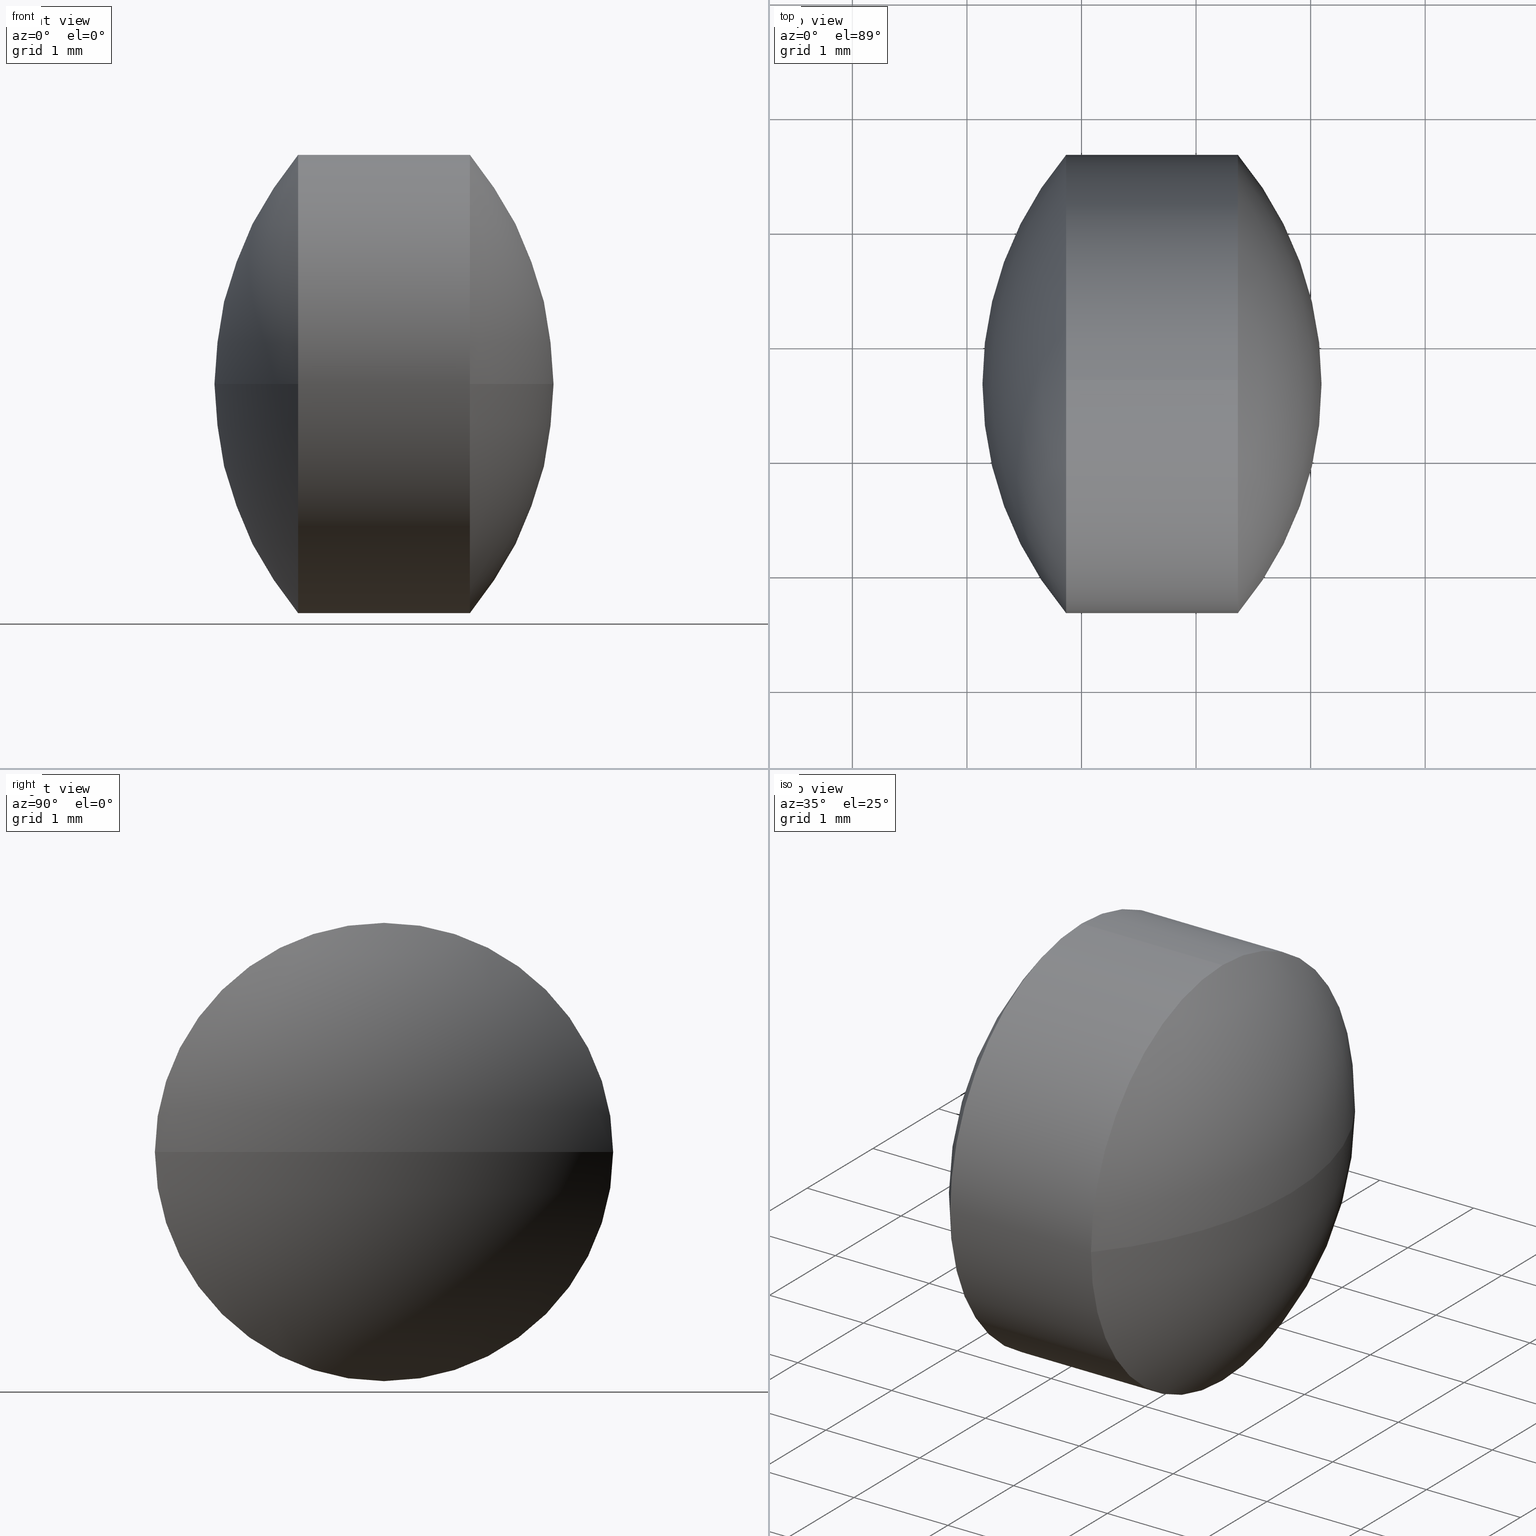
[diagram: canonical four-view strip — front | top / right | iso, engineering-drawing reading convention]
A machine part, canonical four-view strip (front | top / right | iso — engineering-drawing reading convention). The complete STEP part file that produces these views, byte-faithful:
ISO-10303-21;
HEADER;
FILE_DESCRIPTION (( 'STEP AP203' ),
    '1' );
FILE_NAME ('110088.STEP',
    '2019-07-01T07:40:46',
    ( '' ),
    ( '' ),
    'SwSTEP 2.0',
    'SolidWorks 2016',
    '' );
FILE_SCHEMA (( 'CONFIG_CONTROL_DESIGN' ));
ENDSEC;

DATA;
#1 = COORDINATED_UNIVERSAL_TIME_OFFSET ( 8, 0, .AHEAD. ) ;
#2 = AXIS2_PLACEMENT_3D ( 'NONE', #171, #3, #334 ) ;
#3 = DIRECTION ( 'NONE',  ( -0.0000000000000000000, 0.0000000000000000000, -1.000000000000000000 ) ) ;
#4 = ORIENTED_EDGE ( 'NONE', *, *, #158, .F. ) ;
#5 = DIRECTION ( 'NONE',  ( -1.000000000000000000, -0.0000000000000000000, -0.0000000000000000000 ) ) ;
#6 = APPLICATION_CONTEXT ( 'configuration controlled 3d designs of mechanical parts and assemblies' ) ;
#7 = CARTESIAN_POINT ( 'NONE',  ( 12.86546358656102900, 7.656080791052722200, 0.0000000000000000000 ) ) ;
#8 = DIRECTION ( 'NONE',  ( 0.0000000000000000000, 0.0000000000000000000, 1.000000000000000000 ) ) ;
#9 = APPROVAL_STATUS ( 'not_yet_approved' ) ;
#10 = LINE ( 'NONE', #114, #75 ) ;
#11 = CC_DESIGN_PERSON_AND_ORGANIZATION_ASSIGNMENT ( #21, #97, ( #301 ) ) ;
#12 = APPROVAL_ROLE ( '' ) ;
#13 = APPLICATION_PROTOCOL_DEFINITION ( 'international standard', 'config_control_design', 1994, #119 ) ;
#14 = APPROVAL ( #331, 'δָ��' ) ;
#15 = LOCAL_TIME ( 15, 40, 46.00000000000000000, #199 ) ;
#16 = DIRECTION ( 'NONE',  ( 0.0000000000000000000, 0.0000000000000000000, 1.000000000000000000 ) ) ;
#17 = EDGE_LOOP ( 'NONE', ( #216, #235, #241, #33 ) ) ;
#18 = EDGE_CURVE ( 'NONE', #317, #156, #59, .T. ) ;
#19 = COORDINATED_UNIVERSAL_TIME_OFFSET ( 8, 0, .AHEAD. ) ;
#20 = EDGE_LOOP ( 'NONE', ( #157, #36, #107, #50, #4, #320 ) ) ;
#21 = PERSON_AND_ORGANIZATION ( #101, #93 ) ;
#22 = CC_DESIGN_PERSON_AND_ORGANIZATION_ASSIGNMENT ( #240, #41, ( #239 ) ) ;
#23 = DATE_AND_TIME ( #260, #328 ) ;
#24 = ORIENTED_EDGE ( 'NONE', *, *, #234, .F. ) ;
#25 = CARTESIAN_POINT ( 'NONE',  ( 15.24018961395828400, 7.656080791052722200, 0.0000000000000000000 ) ) ;
#26 = DIRECTION ( 'NONE',  ( 0.0000000000000000000, 0.0000000000000000000, 1.000000000000000000 ) ) ;
#27 = AXIS2_PLACEMENT_3D ( 'NONE', #180, #45, #207 ) ;
#28 = LOCAL_TIME ( 15, 40, 46.00000000000000000, #142 ) ;
#29 = CARTESIAN_POINT ( 'NONE',  ( 14.36546358656102900, 7.656080791052722200, 0.0000000000000000000 ) ) ;
#30 = PERSON_AND_ORGANIZATION_ROLE ( 'design_supplier' ) ;
#31 = PERSON_AND_ORGANIZATION ( #101, #93 ) ;
#32 = CC_DESIGN_APPROVAL ( #270, ( #113 ) ) ;
#33 = ORIENTED_EDGE ( 'NONE', *, *, #79, .F. ) ;
#34 = CARTESIAN_POINT ( 'NONE',  ( 11.99073755916374400, 7.656080791052730200, 0.0000000000000000000 ) ) ;
#35 = ORIENTED_EDGE ( 'NONE', *, *, #248, .F. ) ;
#36 = ORIENTED_EDGE ( 'NONE', *, *, #213, .T. ) ;
#37 = MECHANICAL_CONTEXT ( 'NONE', #329, 'mechanical' ) ;
#38 = CARTESIAN_POINT ( 'NONE',  ( 14.36546358656102900, 7.656080791052722200, 0.0000000000000000000 ) ) ;
#39 = PERSON_AND_ORGANIZATION_ROLE ( 'creator' ) ;
#40 =( NAMED_UNIT ( * ) SI_UNIT ( $, .STERADIAN. ) SOLID_ANGLE_UNIT ( ) );
#41 = PERSON_AND_ORGANIZATION_ROLE ( 'classification_officer' ) ;
#42 = CARTESIAN_POINT ( 'NONE',  ( 0.0000000000000000000, 0.0000000000000000000, 0.0000000000000000000 ) ) ;
#43 = APPROVAL_PERSON_ORGANIZATION ( #273, #163, #230 ) ;
#44 = ORIENTED_EDGE ( 'NONE', *, *, #95, .F. ) ;
#45 = DIRECTION ( 'NONE',  ( -1.000000000000000000, -0.0000000000000000000, -0.0000000000000000000 ) ) ;
#46 =( LENGTH_UNIT ( ) NAMED_UNIT ( * ) SI_UNIT ( .MILLI., .METRE. ) );
#47 = CC_DESIGN_APPROVAL ( #163, ( #239 ) ) ;
#48 = CALENDAR_DATE ( 2019, 1, 7 ) ;
#49 = VERTEX_POINT ( 'NONE', #58 ) ;
#50 = ORIENTED_EDGE ( 'NONE', *, *, #297, .F. ) ;
#51 = FACE_OUTER_BOUND ( 'NONE', #84, .T. ) ;
#52 = SECURITY_CLASSIFICATION ( '', '', #284 ) ;
#53 = ADVANCED_FACE ( 'NONE', ( #282 ), #321, .T. ) ;
#54 = PERSON_AND_ORGANIZATION ( #101, #93 ) ;
#55 = PRODUCT_RELATED_PRODUCT_CATEGORY ( 'detail', '', ( #159 ) ) ;
#56 = COORDINATED_UNIVERSAL_TIME_OFFSET ( 8, 0, .AHEAD. ) ;
#57 = PRODUCT_DEFINITION ( 'δ֪', '', #301, #243 ) ;
#58 = CARTESIAN_POINT ( 'NONE',  ( 15.09546358656102200, 7.656080791052730200, 0.0000000000000000000 ) ) ;
#59 = CIRCLE ( 'NONE', #105, 1.999999999999998200 ) ;
#60 = CARTESIAN_POINT ( 'NONE',  ( 12.86546358656102900, 7.656080791052722200, 0.0000000000000000000 ) ) ;
#61 = PRODUCT_DEFINITION ( 'δ֪', '', #113, #281 ) ;
#62 = CARTESIAN_POINT ( 'NONE',  ( 11.99073755916374400, 7.656080791052730200, 0.0000000000000000000 ) ) ;
#63 = CALENDAR_DATE ( 2019, 1, 7 ) ;
#64 = ORIENTED_EDGE ( 'NONE', *, *, #108, .T. ) ;
#65 = DIRECTION ( 'NONE',  ( -1.000000000000000000, -0.0000000000000000000, -0.0000000000000000000 ) ) ;
#66 = CC_DESIGN_PERSON_AND_ORGANIZATION_ASSIGNMENT ( #70, #39, ( #301 ) ) ;
#67 = PRODUCT_DEFINITION_SHAPE ( 'NONE', 'NONE',  #61 ) ;
#68 = AXIS2_PLACEMENT_3D ( 'NONE', #34, #148, #225 ) ;
#69 = DIRECTION ( 'NONE',  ( 1.000000000000000000, 0.0000000000000000000, 0.0000000000000000000 ) ) ;
#70 = PERSON_AND_ORGANIZATION ( #101, #93 ) ;
#71 = EDGE_LOOP ( 'NONE', ( #296, #305, #149, #44 ) ) ;
#72 = VECTOR ( 'NONE', #327, 1000.000000000000000 ) ;
#73 = AXIS2_PLACEMENT_3D ( 'NONE', #98, #184, #178 ) ;
#74 = ORIENTED_EDGE ( 'NONE', *, *, #79, .T. ) ;
#75 = VECTOR ( 'NONE', #65, 1000.000000000000000 ) ;
#76 = ADVANCED_FACE ( 'NONE', ( #161 ), #130, .T. ) ;
#77 = APPROVAL_PERSON_ORGANIZATION ( #221, #166, #201 ) ;
#78 = SPHERICAL_SURFACE ( 'NONE', #2, 3.104726027397255900 ) ;
#79 = EDGE_CURVE ( 'NONE', #143, #291, #245, .T. ) ;
#80 = CALENDAR_DATE ( 2019, 1, 7 ) ;
#81 = CIRCLE ( 'NONE', #274, 1.999999999999998200 ) ;
#82 = DIRECTION ( 'NONE',  ( -0.0000000000000000000, 0.0000000000000000000, -1.000000000000000000 ) ) ;
#83 = COORDINATED_UNIVERSAL_TIME_OFFSET ( 8, 0, .AHEAD. ) ;
#84 = EDGE_LOOP ( 'NONE', ( #118, #192, #181, #134, #196, #168 ) ) ;
#85 = CYLINDRICAL_SURFACE ( 'NONE', #27, 1.999999999999998200 ) ;
#86 = DIRECTION ( 'NONE',  ( 0.0000000000000000000, 1.000000000000000000, 1.224646799147353000E-016 ) ) ;
#87 = DIRECTION ( 'NONE',  ( 0.0000000000000000000, 1.224646799147353200E-016, -1.000000000000000000 ) ) ;
#88 = MANIFOLD_SOLID_BREP ( '��ת1', #124 ) ;
#89 = CARTESIAN_POINT ( 'NONE',  ( 14.36546358656102900, 7.656080791052722200, 0.0000000000000000000 ) ) ;
#90 = AXIS2_PLACEMENT_3D ( 'NONE', #38, #5, #306 ) ;
#91 = DIRECTION ( 'NONE',  ( 1.000000000000000000, 0.0000000000000000000, 0.0000000000000000000 ) ) ;
#92 = LOCAL_TIME ( 15, 40, 46.00000000000000000, #83 ) ;
#93 = ORGANIZATION ( 'δָ��', 'δָ��', '' ) ;
#94 = APPLICATION_PROTOCOL_DEFINITION ( 'international standard', 'config_control_design', 1994, #329 ) ;
#95 = EDGE_CURVE ( 'NONE', #156, #217, #186, .T. ) ;
#96 = DIRECTION ( 'NONE',  ( 0.0000000000000000000, 0.0000000000000000000, 1.000000000000000000 ) ) ;
#97 = PERSON_AND_ORGANIZATION_ROLE ( 'design_supplier' ) ;
#98 = CARTESIAN_POINT ( 'NONE',  ( 11.99073755916374400, 7.656080791052730200, 0.0000000000000000000 ) ) ;
#99 = PERSON_AND_ORGANIZATION ( #101, #93 ) ;
#100 = CC_DESIGN_PERSON_AND_ORGANIZATION_ASSIGNMENT ( #295, #141, ( #159 ) ) ;
#101 = PERSON ( 'δָ��', 'δָ��', 'δָ��', ('δָ��'), ('δָ��'), ('δָ��') ) ;
#102 = DATE_AND_TIME ( #48, #290 ) ;
#103 = CC_DESIGN_DATE_AND_TIME_ASSIGNMENT ( #23, #310, ( #52 ) ) ;
#104 = DATE_AND_TIME ( #63, #294 ) ;
#105 = AXIS2_PLACEMENT_3D ( 'NONE', #343, #195, #26 ) ;
#106 = COORDINATED_UNIVERSAL_TIME_OFFSET ( 8, 0, .AHEAD. ) ;
#107 = ORIENTED_EDGE ( 'NONE', *, *, #172, .F. ) ;
#108 = EDGE_CURVE ( 'NONE', #215, #292, #182, .T. ) ;
#109 = APPROVAL_DATE_TIME ( #323, #138 ) ;
#110 = CIRCLE ( 'NONE', #190, 1.999999999999998200 ) ;
#111 = CC_DESIGN_APPROVAL ( #187, ( #301 ) ) ;
#112 = DIRECTION ( 'NONE',  ( -1.000000000000000000, -0.0000000000000000000, -0.0000000000000000000 ) ) ;
#113 = PRODUCT_DEFINITION_FORMATION_WITH_SPECIFIED_SOURCE ( '�κ�', '', #159, .NOT_KNOWN. ) ;
#114 = CARTESIAN_POINT ( 'NONE',  ( 11.59663177087693100, 7.656080791052722200, -1.999999999999998200 ) ) ;
#115 = APPROVAL_STATUS ( 'not_yet_approved' ) ;
#116 = CALENDAR_DATE ( 2019, 1, 7 ) ;
#117 = DIRECTION ( 'NONE',  ( -1.000000000000000000, -0.0000000000000000000, -0.0000000000000000000 ) ) ;
#118 = ORIENTED_EDGE ( 'NONE', *, *, #213, .F. ) ;
#119 = APPLICATION_CONTEXT ( 'configuration controlled 3d designs of mechanical parts and assemblies' ) ;
#120 = CARTESIAN_POINT ( 'NONE',  ( 12.86546358656102900, 5.656080791052724000, -2.449293598294704900E-016 ) ) ;
#121 = PERSON_AND_ORGANIZATION_ROLE ( 'design_owner' ) ;
#122 = APPLICATION_PROTOCOL_DEFINITION ( 'international standard', 'config_control_design', 1994, #283 ) ;
#123 = PERSON_AND_ORGANIZATION_ROLE ( 'classification_officer' ) ;
#124 = CLOSED_SHELL ( 'NONE', ( #315, #53, #76, #264, #162, #211 ) ) ;
#125 = AXIS2_PLACEMENT_3D ( 'NONE', #25, #82, #139 ) ;
#126 = DIRECTION ( 'NONE',  ( -1.000000000000000000, -0.0000000000000000000, -0.0000000000000000000 ) ) ;
#127 = DATE_AND_TIME ( #233, #15 ) ;
#128 = PRODUCT ( '110088', '110088', '', ( #37 ) ) ;
#129 = CC_DESIGN_PERSON_AND_ORGANIZATION_ASSIGNMENT ( #99, #206, ( #113 ) ) ;
#130 = SPHERICAL_SURFACE ( 'NONE', #125, 3.104726027397255900 ) ;
#131 = CC_DESIGN_APPROVAL ( #138, ( #52 ) ) ;
#132 = PERSON_AND_ORGANIZATION ( #101, #93 ) ;
#133 = CC_DESIGN_APPROVAL ( #166, ( #57 ) ) ;
#134 = ORIENTED_EDGE ( 'NONE', *, *, #158, .T. ) ;
#135 = FACE_OUTER_BOUND ( 'NONE', #71, .T. ) ;
#136 = PRODUCT_DEFINITION_SHAPE ( 'NONE', 'NONE',  #57 ) ;
#137 = FACE_OUTER_BOUND ( 'NONE', #219, .T. ) ;
#138 = APPROVAL ( #336, 'δָ��' ) ;
#139 = DIRECTION ( 'NONE',  ( 0.0000000000000000000, 1.000000000000000000, 0.0000000000000000000 ) ) ;
#140 = AXIS2_PLACEMENT_3D ( 'NONE', #220, #87, #86 ) ;
#141 = PERSON_AND_ORGANIZATION_ROLE ( 'design_owner' ) ;
#142 = COORDINATED_UNIVERSAL_TIME_OFFSET ( 8, 0, .AHEAD. ) ;
#143 = VERTEX_POINT ( 'NONE', #222 ) ;
#144 = APPROVAL_ROLE ( '' ) ;
#145 = CARTESIAN_POINT ( 'NONE',  ( 12.86546358656102900, 7.656080791052722200, 0.0000000000000000000 ) ) ;
#146 = UNCERTAINTY_MEASURE_WITH_UNIT (LENGTH_MEASURE( 1.000000000000000100E-005 ), #46, 'distance_accuracy_value', 'NONE');
#147 = CARTESIAN_POINT ( 'NONE',  ( 14.36546358656102900, 5.656080791052727500, 0.0000000000000000000 ) ) ;
#148 = DIRECTION ( 'NONE',  ( 0.0000000000000000000, 0.0000000000000000000, 1.000000000000000000 ) ) ;
#149 = ORIENTED_EDGE ( 'NONE', *, *, #261, .F. ) ;
#150 = ORIENTED_EDGE ( 'NONE', *, *, #324, .T. ) ;
#151 = DATE_TIME_ROLE ( 'creation_date' ) ;
#152 = MECHANICAL_CONTEXT ( 'NONE', #283, 'mechanical' ) ;
#153 = DIRECTION ( 'NONE',  ( 0.0000000000000000000, 0.0000000000000000000, 1.000000000000000000 ) ) ;
#154 = APPROVAL_DATE_TIME ( #102, #163 ) ;
#155 = PERSON_AND_ORGANIZATION ( #101, #93 ) ;
#156 = VERTEX_POINT ( 'NONE', #308 ) ;
#157 = ORIENTED_EDGE ( 'NONE', *, *, #95, .T. ) ;
#158 = EDGE_CURVE ( 'NONE', #317, #292, #345, .T. ) ;
#159 = PRODUCT ( '110088', '110088', '', ( #152 ) ) ;
#160 = LOCAL_TIME ( 15, 40, 46.00000000000000000, #265 ) ;
#161 = FACE_OUTER_BOUND ( 'NONE', #17, .T. ) ;
#162 = ADVANCED_FACE ( 'NONE', ( #135 ), #212, .T. ) ;
#163 = APPROVAL ( #256, 'δָ��' ) ;
#164 = APPROVAL_DATE_TIME ( #127, #270 ) ;
#165 = CALENDAR_DATE ( 2019, 1, 7 ) ;
#166 = APPROVAL ( #9, 'δָ��' ) ;
#167 = CARTESIAN_POINT ( 'NONE',  ( 11.99073755916374400, 7.656080791052730200, 0.0000000000000000000 ) ) ;
#168 = ORIENTED_EDGE ( 'NONE', *, *, #255, .F. ) ;
#169 = APPROVAL_PERSON_ORGANIZATION ( #268, #270, #332 ) ;
#170 = VERTEX_POINT ( 'NONE', #173 ) ;
#171 = CARTESIAN_POINT ( 'NONE',  ( 15.24018961395828400, 7.656080791052722200, 0.0000000000000000000 ) ) ;
#172 = EDGE_CURVE ( 'NONE', #143, #170, #269, .T. ) ;
#173 = CARTESIAN_POINT ( 'NONE',  ( 12.86546358656102900, 7.656080791052722200, -1.999999999999998200 ) ) ;
#174 = DATE_AND_TIME ( #191, #160 ) ;
#175 = PERSON_AND_ORGANIZATION_ROLE ( 'creator' ) ;
#176 = DIRECTION ( 'NONE',  ( -1.000000000000000000, -0.0000000000000000000, -0.0000000000000000000 ) ) ;
#177 = CC_DESIGN_SECURITY_CLASSIFICATION ( #52, ( #301 ) ) ;
#178 = DIRECTION ( 'NONE',  ( 0.0000000000000000000, -1.000000000000000000, -1.224646799147353200E-016 ) ) ;
#179 = DATE_AND_TIME ( #339, #316 ) ;
#180 = CARTESIAN_POINT ( 'NONE',  ( 11.59663177087693100, 7.656080791052722200, 0.0000000000000000000 ) ) ;
#181 = ORIENTED_EDGE ( 'NONE', *, *, #234, .T. ) ;
#182 = CIRCLE ( 'NONE', #307, 1.999999999999998200 ) ;
#183 = CC_DESIGN_DATE_AND_TIME_ASSIGNMENT ( #104, #151, ( #57 ) ) ;
#184 = DIRECTION ( 'NONE',  ( 0.0000000000000000000, -1.224646799147353200E-016, 1.000000000000000000 ) ) ;
#185 = PERSON_AND_ORGANIZATION ( #101, #93 ) ;
#186 = CIRCLE ( 'NONE', #90, 1.999999999999998200 ) ;
#187 = APPROVAL ( #202, 'δָ��' ) ;
#188 = APPROVAL_DATE_TIME ( #174, #14 ) ;
#189 = CIRCLE ( 'NONE', #288, 1.999999999999998200 ) ;
#190 = AXIS2_PLACEMENT_3D ( 'NONE', #29, #302, #153 ) ;
#191 = CALENDAR_DATE ( 2019, 1, 7 ) ;
#192 = ORIENTED_EDGE ( 'NONE', *, *, #261, .T. ) ;
#193 = DIRECTION ( 'NONE',  ( 0.0000000000000000000, 0.0000000000000000000, 1.000000000000000000 ) ) ;
#194 = PRODUCT_RELATED_PRODUCT_CATEGORY ( 'detail', '', ( #128 ) ) ;
#195 = DIRECTION ( 'NONE',  ( -1.000000000000000000, -0.0000000000000000000, -0.0000000000000000000 ) ) ;
#196 = ORIENTED_EDGE ( 'NONE', *, *, #108, .F. ) ;
#197 = CC_DESIGN_PERSON_AND_ORGANIZATION_ASSIGNMENT ( #132, #175, ( #61 ) ) ;
#198 = DIRECTION ( 'NONE',  ( -1.000000000000000000, -0.0000000000000000000, -0.0000000000000000000 ) ) ;
#199 = COORDINATED_UNIVERSAL_TIME_OFFSET ( 8, 0, .AHEAD. ) ;
#200 = CARTESIAN_POINT ( 'NONE',  ( 15.24018961395828400, 7.656080791052722200, 0.0000000000000000000 ) ) ;
#201 = APPROVAL_ROLE ( '' ) ;
#202 = APPROVAL_STATUS ( 'not_yet_approved' ) ;
#203 = AXIS2_PLACEMENT_3D ( 'NONE', #337, #126, #16 ) ;
#204 = DATE_TIME_ROLE ( 'creation_date' ) ;
#205 =( NAMED_UNIT ( * ) PLANE_ANGLE_UNIT ( ) SI_UNIT ( $, .RADIAN. ) );
#206 = PERSON_AND_ORGANIZATION_ROLE ( 'creator' ) ;
#207 = DIRECTION ( 'NONE',  ( 0.0000000000000000000, 0.0000000000000000000, 1.000000000000000000 ) ) ;
#208 = CARTESIAN_POINT ( 'NONE',  ( 14.36546358656102900, 7.656080791052722200, 1.999999999999998200 ) ) ;
#209 = DATE_AND_TIME ( #116, #28 ) ;
#210 = CC_DESIGN_DATE_AND_TIME_ASSIGNMENT ( #179, #204, ( #61 ) ) ;
#211 = ADVANCED_FACE ( 'NONE', ( #51 ), #237, .T. ) ;
#212 = SPHERICAL_SURFACE ( 'NONE', #68, 3.104726027397278500 ) ;
#213 = EDGE_CURVE ( 'NONE', #217, #170, #10, .T. ) ;
#214 = APPROVAL_PERSON_ORGANIZATION ( #228, #187, #254 ) ;
#215 = VERTEX_POINT ( 'NONE', #120 ) ;
#216 = ORIENTED_EDGE ( 'NONE', *, *, #172, .T. ) ;
#217 = VERTEX_POINT ( 'NONE', #253 ) ;
#218 = AXIS2_PLACEMENT_3D ( 'NONE', #42, #232, #309 ) ;
#219 = EDGE_LOOP ( 'NONE', ( #35, #64, #252, #74 ) ) ;
#220 = CARTESIAN_POINT ( 'NONE',  ( 15.24018961395828400, 7.656080791052722200, 0.0000000000000000000 ) ) ;
#221 = PERSON_AND_ORGANIZATION ( #101, #93 ) ;
#222 = CARTESIAN_POINT ( 'NONE',  ( 12.86546358656102900, 9.656080791052721300, 0.0000000000000000000 ) ) ;
#223 = APPLICATION_PROTOCOL_DEFINITION ( 'international standard', 'config_control_design', 1994, #6 ) ;
#224 = CC_DESIGN_PERSON_AND_ORGANIZATION_ASSIGNMENT ( #251, #30, ( #113 ) ) ;
#225 = DIRECTION ( 'NONE',  ( 0.0000000000000000000, -1.000000000000000000, 0.0000000000000000000 ) ) ;
#226 = DIRECTION ( 'NONE',  ( 0.0000000000000000000, 0.0000000000000000000, -1.000000000000000000 ) ) ;
#227 = PERSON_AND_ORGANIZATION_ROLE ( 'creator' ) ;
#228 = PERSON_AND_ORGANIZATION ( #101, #93 ) ;
#229 = CARTESIAN_POINT ( 'NONE',  ( 11.59663177087693100, 7.656080791052722200, 0.0000000000000000000 ) ) ;
#230 = APPROVAL_ROLE ( '' ) ;
#231 = CC_DESIGN_PERSON_AND_ORGANIZATION_ASSIGNMENT ( #54, #123, ( #52 ) ) ;
#232 = DIRECTION ( 'NONE',  ( 0.0000000000000000000, 0.0000000000000000000, 1.000000000000000000 ) ) ;
#233 = CALENDAR_DATE ( 2019, 1, 7 ) ;
#234 = EDGE_CURVE ( 'NONE', #266, #317, #81, .T. ) ;
#235 = ORIENTED_EDGE ( 'NONE', *, *, #255, .T. ) ;
#236 = APPROVAL_PERSON_ORGANIZATION ( #185, #138, #144 ) ;
#237 = CYLINDRICAL_SURFACE ( 'NONE', #293, 1.999999999999998200 ) ;
#238 = EDGE_CURVE ( 'NONE', #49, #266, #335, .T. ) ;
#239 = SECURITY_CLASSIFICATION ( '', '', #277 ) ;
#240 = PERSON_AND_ORGANIZATION ( #101, #93 ) ;
#241 = ORIENTED_EDGE ( 'NONE', *, *, #248, .T. ) ;
#242 = CIRCLE ( 'NONE', #73, 3.104726027397278500 ) ;
#243 = DESIGN_CONTEXT ( 'detailed design', #6, 'design' ) ;
#244 = CALENDAR_DATE ( 2019, 1, 7 ) ;
#245 = CIRCLE ( 'NONE', #340, 3.104726027397256800 ) ;
#246 = ORIENTED_EDGE ( 'NONE', *, *, #238, .F. ) ;
#247 = APPROVAL_DATE_TIME ( #287, #166 ) ;
#248 = EDGE_CURVE ( 'NONE', #215, #291, #325, .T. ) ;
#249 = DIRECTION ( 'NONE',  ( -0.0000000000000000000, 0.0000000000000000000, 1.000000000000000000 ) ) ;
#250 = DIRECTION ( 'NONE',  ( 0.0000000000000000000, 0.0000000000000000000, 1.000000000000000000 ) ) ;
#251 = PERSON_AND_ORGANIZATION ( #101, #93 ) ;
#252 = ORIENTED_EDGE ( 'NONE', *, *, #297, .T. ) ;
#253 = CARTESIAN_POINT ( 'NONE',  ( 14.36546358656102900, 7.656080791052722200, -1.999999999999998200 ) ) ;
#254 = APPROVAL_ROLE ( '' ) ;
#255 = EDGE_CURVE ( 'NONE', #170, #215, #189, .T. ) ;
#256 = APPROVAL_STATUS ( 'not_yet_approved' ) ;
#257 = CARTESIAN_POINT ( 'NONE',  ( 0.0000000000000000000, 0.0000000000000000000, 0.0000000000000000000 ) ) ;
#258 = AXIS2_PLACEMENT_3D ( 'NONE', #167, #193, #342 ) ;
#259 = DATE_AND_TIME ( #80, #92 ) ;
#260 = CALENDAR_DATE ( 2019, 1, 7 ) ;
#261 = EDGE_CURVE ( 'NONE', #217, #266, #110, .T. ) ;
#262 = EDGE_LOOP ( 'NONE', ( #246, #150, #263, #24 ) ) ;
#263 = ORIENTED_EDGE ( 'NONE', *, *, #18, .F. ) ;
#264 = ADVANCED_FACE ( 'NONE', ( #137 ), #78, .T. ) ;
#265 = COORDINATED_UNIVERSAL_TIME_OFFSET ( 8, 0, .AHEAD. ) ;
#266 = VERTEX_POINT ( 'NONE', #147 ) ;
#267 = AXIS2_PLACEMENT_3D ( 'NONE', #62, #226, #272 ) ;
#268 = PERSON_AND_ORGANIZATION ( #101, #93 ) ;
#269 = CIRCLE ( 'NONE', #286, 1.999999999999998200 ) ;
#270 = APPROVAL ( #115, 'δָ��' ) ;
#271 = CC_DESIGN_SECURITY_CLASSIFICATION ( #239, ( #113 ) ) ;
#272 = DIRECTION ( 'NONE',  ( -1.000000000000000000, 0.0000000000000000000, 0.0000000000000000000 ) ) ;
#273 = PERSON_AND_ORGANIZATION ( #101, #93 ) ;
#274 = AXIS2_PLACEMENT_3D ( 'NONE', #89, #117, #8 ) ;
#275 = DIRECTION ( 'NONE',  ( 0.0000000000000000000, 0.0000000000000000000, 1.000000000000000000 ) ) ;
#276 = DIRECTION ( 'NONE',  ( 0.0000000000000000000, 0.0000000000000000000, 1.000000000000000000 ) ) ;
#277 = SECURITY_CLASSIFICATION_LEVEL ( 'unclassified' ) ;
#278 = CARTESIAN_POINT ( 'NONE',  ( 11.59663177087693100, 7.656080791052722200, 1.999999999999998200 ) ) ;
#279 = DATE_TIME_ROLE ( 'classification_date' ) ;
#280 = PERSON_AND_ORGANIZATION ( #101, #93 ) ;
#281 = DESIGN_CONTEXT ( 'detailed design', #119, 'design' ) ;
#282 = FACE_OUTER_BOUND ( 'NONE', #262, .T. ) ;
#283 = APPLICATION_CONTEXT ( 'configuration controlled 3d designs of mechanical parts and assemblies' ) ;
#284 = SECURITY_CLASSIFICATION_LEVEL ( 'unclassified' ) ;
#285 = CARTESIAN_POINT ( 'NONE',  ( 12.13546358656102900, 7.656080791052722200, 0.0000000000000000000 ) ) ;
#286 = AXIS2_PLACEMENT_3D ( 'NONE', #7, #198, #276 ) ;
#287 = DATE_AND_TIME ( #165, #304 ) ;
#288 = AXIS2_PLACEMENT_3D ( 'NONE', #60, #112, #326 ) ;
#289 = CC_DESIGN_PERSON_AND_ORGANIZATION_ASSIGNMENT ( #31, #227, ( #57 ) ) ;
#290 = LOCAL_TIME ( 15, 40, 46.00000000000000000, #19 ) ;
#291 = VERTEX_POINT ( 'NONE', #285 ) ;
#292 = VERTEX_POINT ( 'NONE', #338 ) ;
#293 = AXIS2_PLACEMENT_3D ( 'NONE', #229, #176, #250 ) ;
#294 = LOCAL_TIME ( 15, 40, 46.00000000000000000, #319 ) ;
#295 = PERSON_AND_ORGANIZATION ( #101, #93 ) ;
#296 = ORIENTED_EDGE ( 'NONE', *, *, #324, .F. ) ;
#297 = EDGE_CURVE ( 'NONE', #292, #143, #299, .T. ) ;
#298 = COORDINATED_UNIVERSAL_TIME_OFFSET ( 8, 0, .AHEAD. ) ;
#299 = CIRCLE ( 'NONE', #203, 1.999999999999998200 ) ;
#300 = ADVANCED_BREP_SHAPE_REPRESENTATION ( '110088', ( #88, #218 ), #313 ) ;
#301 = PRODUCT_DEFINITION_FORMATION_WITH_SPECIFIED_SOURCE ( '�κ�', '', #128, .NOT_KNOWN. ) ;
#302 = DIRECTION ( 'NONE',  ( -1.000000000000000000, -0.0000000000000000000, -0.0000000000000000000 ) ) ;
#303 = DIRECTION ( 'NONE',  ( -1.000000000000000000, -0.0000000000000000000, -0.0000000000000000000 ) ) ;
#304 = LOCAL_TIME ( 15, 40, 46.00000000000000000, #1 ) ;
#305 = ORIENTED_EDGE ( 'NONE', *, *, #238, .T. ) ;
#306 = DIRECTION ( 'NONE',  ( 0.0000000000000000000, 0.0000000000000000000, 1.000000000000000000 ) ) ;
#307 = AXIS2_PLACEMENT_3D ( 'NONE', #145, #303, #275 ) ;
#308 = CARTESIAN_POINT ( 'NONE',  ( 14.36546358656102900, 9.656080791052724900, 2.449293598294700000E-016 ) ) ;
#309 = DIRECTION ( 'NONE',  ( 1.000000000000000000, 0.0000000000000000000, 0.0000000000000000000 ) ) ;
#310 = DATE_TIME_ROLE ( 'classification_date' ) ;
#311 = APPROVAL_DATE_TIME ( #209, #187 ) ;
#312 = FACE_OUTER_BOUND ( 'NONE', #20, .T. ) ;
#313 =( GEOMETRIC_REPRESENTATION_CONTEXT ( 3 ) GLOBAL_UNCERTAINTY_ASSIGNED_CONTEXT ( ( #146 ) ) GLOBAL_UNIT_ASSIGNED_CONTEXT ( ( #46, #205, #40 ) ) REPRESENTATION_CONTEXT ( 'NONE', 'WORKASPACE' ) );
#314 = LOCAL_TIME ( 15, 40, 46.00000000000000000, #106 ) ;
#315 = ADVANCED_FACE ( 'NONE', ( #312 ), #85, .T. ) ;
#316 = LOCAL_TIME ( 15, 40, 46.00000000000000000, #298 ) ;
#317 = VERTEX_POINT ( 'NONE', #208 ) ;
#318 = CC_DESIGN_DATE_AND_TIME_ASSIGNMENT ( #259, #279, ( #239 ) ) ;
#319 = COORDINATED_UNIVERSAL_TIME_OFFSET ( 8, 0, .AHEAD. ) ;
#320 = ORIENTED_EDGE ( 'NONE', *, *, #18, .T. ) ;
#321 = SPHERICAL_SURFACE ( 'NONE', #258, 3.104726027397278500 ) ;
#322 = CC_DESIGN_APPROVAL ( #14, ( #61 ) ) ;
#323 = DATE_AND_TIME ( #244, #314 ) ;
#324 = EDGE_CURVE ( 'NONE', #49, #156, #242, .T. ) ;
#325 = CIRCLE ( 'NONE', #140, 3.104726027397256800 ) ;
#326 = DIRECTION ( 'NONE',  ( 0.0000000000000000000, 0.0000000000000000000, 1.000000000000000000 ) ) ;
#327 = DIRECTION ( 'NONE',  ( -1.000000000000000000, -0.0000000000000000000, -0.0000000000000000000 ) ) ;
#328 = LOCAL_TIME ( 15, 40, 46.00000000000000000, #56 ) ;
#329 = APPLICATION_CONTEXT ( 'configuration controlled 3d designs of mechanical parts and assemblies' ) ;
#330 = AXIS2_PLACEMENT_3D ( 'NONE', #257, #96, #69 ) ;
#331 = APPROVAL_STATUS ( 'not_yet_approved' ) ;
#332 = APPROVAL_ROLE ( '' ) ;
#333 = SHAPE_DEFINITION_REPRESENTATION ( #136, #300 ) ;
#334 = DIRECTION ( 'NONE',  ( 0.0000000000000000000, 1.000000000000000000, 0.0000000000000000000 ) ) ;
#335 = CIRCLE ( 'NONE', #267, 3.104726027397277700 ) ;
#336 = APPROVAL_STATUS ( 'not_yet_approved' ) ;
#337 = CARTESIAN_POINT ( 'NONE',  ( 12.86546358656102900, 7.656080791052722200, 0.0000000000000000000 ) ) ;
#338 = CARTESIAN_POINT ( 'NONE',  ( 12.86546358656102900, 7.656080791052722200, 1.999999999999998200 ) ) ;
#339 = CALENDAR_DATE ( 2019, 1, 7 ) ;
#340 = AXIS2_PLACEMENT_3D ( 'NONE', #200, #249, #91 ) ;
#341 = CC_DESIGN_PERSON_AND_ORGANIZATION_ASSIGNMENT ( #155, #121, ( #128 ) ) ;
#342 = DIRECTION ( 'NONE',  ( 0.0000000000000000000, -1.000000000000000000, 0.0000000000000000000 ) ) ;
#343 = CARTESIAN_POINT ( 'NONE',  ( 14.36546358656102900, 7.656080791052722200, 0.0000000000000000000 ) ) ;
#344 = APPROVAL_PERSON_ORGANIZATION ( #280, #14, #12 ) ;
#345 = LINE ( 'NONE', #278, #72 ) ;
ENDSEC;
END-ISO-10303-21;
